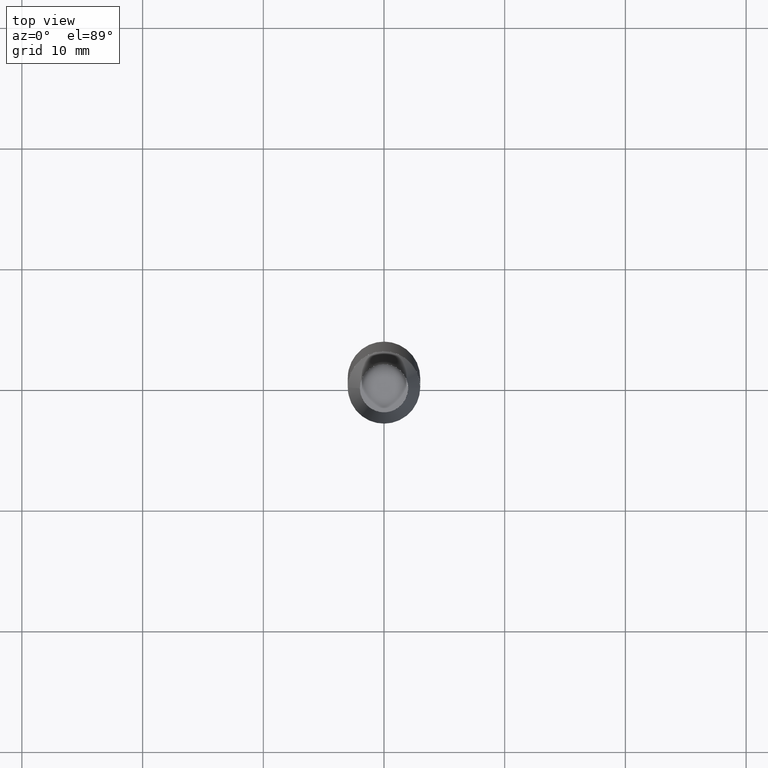
[diagram: clean part render]
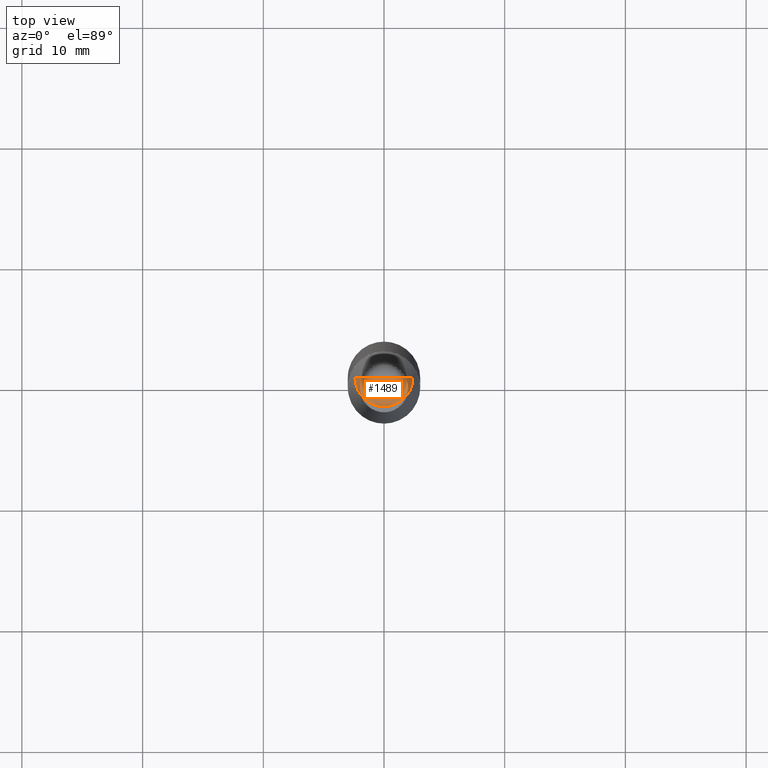
[diagram: same view with one face highlighted and labeled with its STEP entity id]
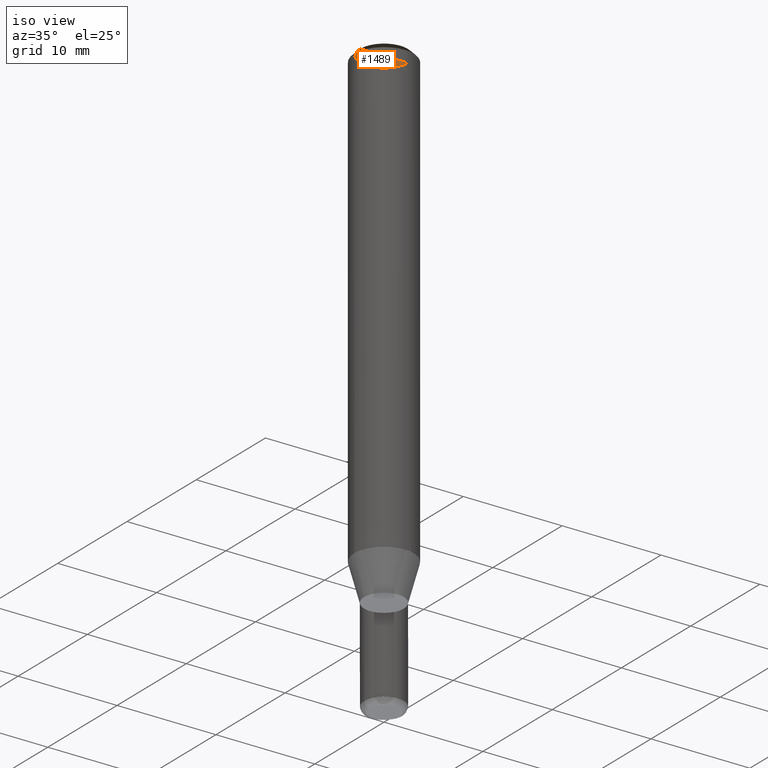
[diagram: same view with one face highlighted and labeled with its STEP entity id]
A machine part, top view. The second image highlights one B-rep face of the part: STEP entity #1489.
A second angle (iso view) of the same face is appended — the face is thin or edge-on in the first view.
In plain terms, the highlighted face is a freeform B-spline surface patch.
Its self-contained STEP definition (entity closure, byte-faithful):
#1134=CARTESIAN_POINT('',(2.4,0.0,46.267949192431));
#1138=CARTESIAN_POINT('',(-2.4,0.0,46.267949192431));
#1139=CARTESIAN_POINT('',(0.0,0.0,46.267949192431));
#1146=CARTESIAN_POINT('',(-2.4,-2.4,46.267949192431));
#1147=CARTESIAN_POINT('',(0.0,-2.4,46.267949192431));
#1148=CARTESIAN_POINT('',(2.4,-2.4,46.267949192431));
#1474=(
BOUNDED_SURFACE()
B_SPLINE_SURFACE(1,2,(
(#1138,#1146,#1147,#1148,#1134),
(#1139,#1139,#1139,#1139,#1139)
), .UNSPECIFIED.,.F.,.F.,.F.)
B_SPLINE_SURFACE_WITH_KNOTS((2,2),(3,2,3),(
0.0,1.0),(
0.0,0.5,1.0), .UNSPECIFIED.)
GEOMETRIC_REPRESENTATION_ITEM()
RATIONAL_B_SPLINE_SURFACE(((1.0,0.707106781187,1.0,0.707106781187,1.0),
(1.0,0.707106781187,1.0,0.707106781187,1.0)
))
REPRESENTATION_ITEM('')
SURFACE()
);
#1475=(
BOUNDED_CURVE()
B_SPLINE_CURVE(1,(#1139,#1134),.UNSPECIFIED.,.F.,.F.)
B_SPLINE_CURVE_WITH_KNOTS((2,2),
(0.0,1.0),.UNSPECIFIED.)
CURVE()
GEOMETRIC_REPRESENTATION_ITEM()
RATIONAL_B_SPLINE_CURVE((1.0,1.0))
REPRESENTATION_ITEM('')
);
#1476=(
BOUNDED_CURVE()
B_SPLINE_CURVE(2,(#1134,#1148,#1147,#1146,#1138),.UNSPECIFIED.,.F.,.F.)
B_SPLINE_CURVE_WITH_KNOTS((3,2,3),
(0.0,0.5,1.0),.UNSPECIFIED.)
CURVE()
GEOMETRIC_REPRESENTATION_ITEM()
RATIONAL_B_SPLINE_CURVE((1.0,0.707106781187,1.0,0.707106781187,1.0))
REPRESENTATION_ITEM('')
);
#1477=(
BOUNDED_CURVE()
B_SPLINE_CURVE(1,(#1138,#1139),.UNSPECIFIED.,.F.,.F.)
B_SPLINE_CURVE_WITH_KNOTS((2,2),
(0.0,1.0),.UNSPECIFIED.)
CURVE()
GEOMETRIC_REPRESENTATION_ITEM()
RATIONAL_B_SPLINE_CURVE((1.0,1.0))
REPRESENTATION_ITEM('')
);
#1478=VERTEX_POINT('',#1134);
#1479=VERTEX_POINT('',#1138);
#1480=VERTEX_POINT('',#1139);
#1481=EDGE_CURVE('',#1480,#1478,#1475,.T.);
#1482=EDGE_CURVE('',#1478,#1479,#1476,.T.);
#1483=EDGE_CURVE('',#1479,#1480,#1477,.T.);
#1484=ORIENTED_EDGE('',*,*,#1481,.T.);
#1485=ORIENTED_EDGE('',*,*,#1482,.T.);
#1486=ORIENTED_EDGE('',*,*,#1483,.T.);
#1487=EDGE_LOOP('',(#1484,#1485,#1486));
#1488=FACE_OUTER_BOUND('',#1487,.T.);
#1489=ADVANCED_FACE('',(#1488),#1474,.T.);